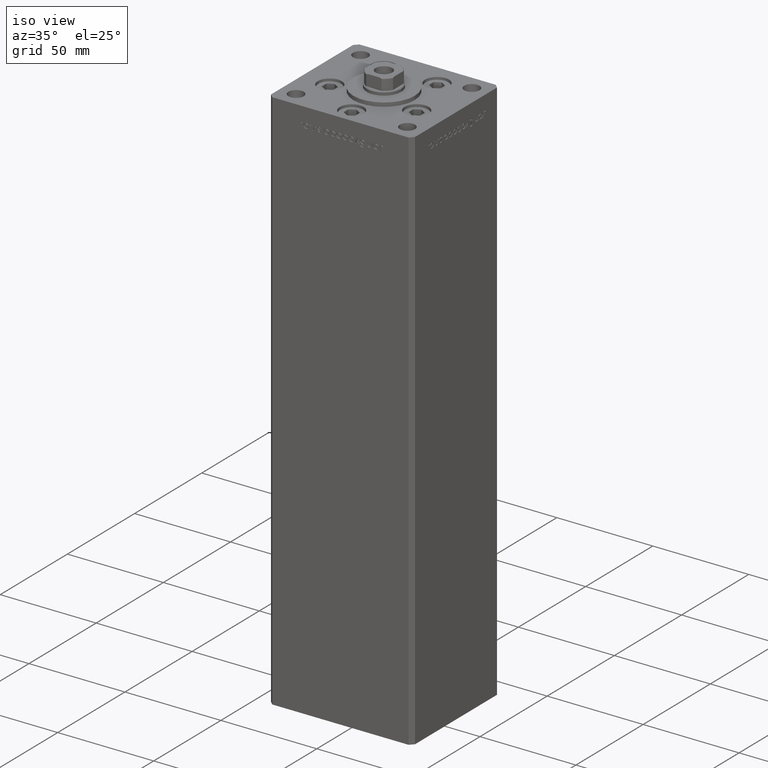
[diagram: clean part render]
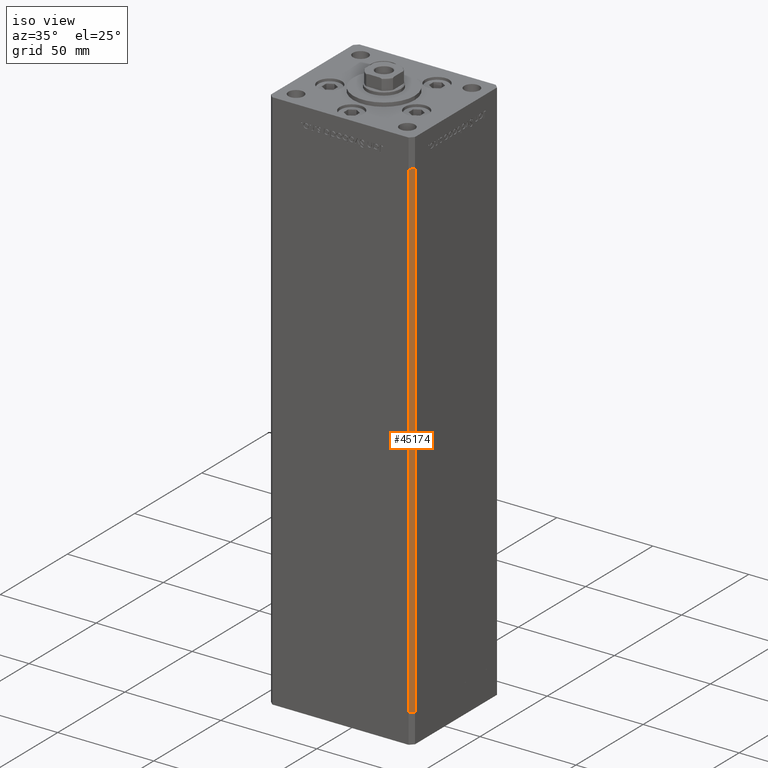
[diagram: same view with one face highlighted and labeled with its STEP entity id]
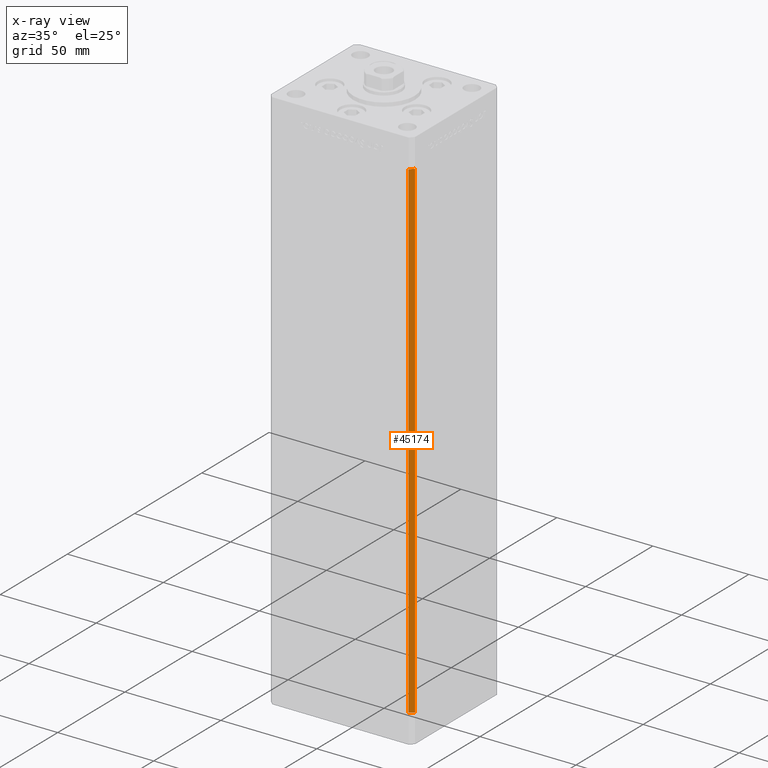
[diagram: x-ray of the same camera — body ghosted, the highlighted face saturated]
A machine part, iso view. The second image highlights one B-rep face of the part: STEP entity #45174.
The next image is the same camera in x-ray: the body ghosted, the highlighted face saturated — about 0% of this face is hidden behind the body in this view.
In plain terms, the highlighted planar face has unit normal (0.7071, -0.7071, 0).
Its self-contained STEP definition (entity closure, byte-faithful):
#4096 = LINE ( 'NONE', #39417, #16015 ) ;
#5299 = EDGE_CURVE ( 'NONE', #45048, #27558, #39367, .T. ) ;
#5920 = DIRECTION ( 'NONE',  ( -0.7071067811865474617, -0.7071067811865474617, 0.000000000000000000 ) ) ;
#8169 = VECTOR ( 'NONE', #47193, 1000.000000000000114 ) ;
#9975 = ORIENTED_EDGE ( 'NONE', *, *, #36537, .T. ) ;
#10233 = EDGE_CURVE ( 'NONE', #32280, #27558, #22258, .T. ) ;
#11140 = CARTESIAN_POINT ( 'NONE',  ( 37.49999999999999289, -30.50000000000000000, 256.0000000000000000 ) ) ;
#12231 = CARTESIAN_POINT ( 'NONE',  ( 35.49999999999999289, -32.50000000000000000, 256.0000000000000000 ) ) ;
#12495 = DIRECTION ( 'NONE',  ( -0.000000000000000000, -0.000000000000000000, -1.000000000000000000 ) ) ;
#14357 = CARTESIAN_POINT ( 'NONE',  ( 37.49999999999999289, -30.50000000000000000, 0.000000000000000000 ) ) ;
#14541 = CARTESIAN_POINT ( 'NONE',  ( 37.49999999999999289, -30.50000000000000000, 256.0000000000000000 ) ) ;
#14829 = DIRECTION ( 'NONE',  ( 0.7071067811865474617, 0.7071067811865474617, 0.000000000000000000 ) ) ;
#16015 = VECTOR ( 'NONE', #43140, 1000.000000000000000 ) ;
#17498 = CARTESIAN_POINT ( 'NONE',  ( 35.49999999999999289, -32.50000000000000000, 256.0000000000000000 ) ) ;
#18378 = EDGE_LOOP ( 'NONE', ( #26286, #32854, #9975, #30753 ) ) ;
#19061 = VECTOR ( 'NONE', #12495, 1000.000000000000000 ) ;
#22258 = LINE ( 'NONE', #14357, #41118 ) ;
#22745 = PLANE ( 'NONE',  #32862 ) ;
#22994 = DIRECTION ( 'NONE',  ( 0.7071067811865475727, -0.7071067811865475727, 0.000000000000000000 ) ) ;
#26286 = ORIENTED_EDGE ( 'NONE', *, *, #10233, .F. ) ;
#27558 = VERTEX_POINT ( 'NONE', #48462 ) ;
#30650 = FACE_OUTER_BOUND ( 'NONE', #18378, .T. ) ;
#30753 = ORIENTED_EDGE ( 'NONE', *, *, #5299, .T. ) ;
#30854 = LINE ( 'NONE', #14541, #8169 ) ;
#32280 = VERTEX_POINT ( 'NONE', #42490 ) ;
#32854 = ORIENTED_EDGE ( 'NONE', *, *, #51100, .F. ) ;
#32862 = AXIS2_PLACEMENT_3D ( 'NONE', #11140, #22994, #14829 ) ;
#36537 = EDGE_CURVE ( 'NONE', #46505, #45048, #30854, .T. ) ;
#39367 = LINE ( 'NONE', #12231, #19061 ) ;
#39417 = CARTESIAN_POINT ( 'NONE',  ( 37.49999999999999289, -30.50000000000000000, 256.0000000000000000 ) ) ;
#41118 = VECTOR ( 'NONE', #5920, 1000.000000000000114 ) ;
#42490 = CARTESIAN_POINT ( 'NONE',  ( 37.49999999999999289, -30.50000000000000000, 0.000000000000000000 ) ) ;
#43140 = DIRECTION ( 'NONE',  ( -0.000000000000000000, -0.000000000000000000, -1.000000000000000000 ) ) ;
#43845 = CARTESIAN_POINT ( 'NONE',  ( 37.49999999999999289, -30.50000000000000000, 256.0000000000000000 ) ) ;
#45048 = VERTEX_POINT ( 'NONE', #17498 ) ;
#45174 = ADVANCED_FACE ( 'NONE', ( #30650 ), #22745, .T. ) ;
#46505 = VERTEX_POINT ( 'NONE', #43845 ) ;
#47193 = DIRECTION ( 'NONE',  ( -0.7071067811865474617, -0.7071067811865474617, 0.000000000000000000 ) ) ;
#48462 = CARTESIAN_POINT ( 'NONE',  ( 35.49999999999999289, -32.50000000000000000, 0.000000000000000000 ) ) ;
#51100 = EDGE_CURVE ( 'NONE', #46505, #32280, #4096, .T. ) ;